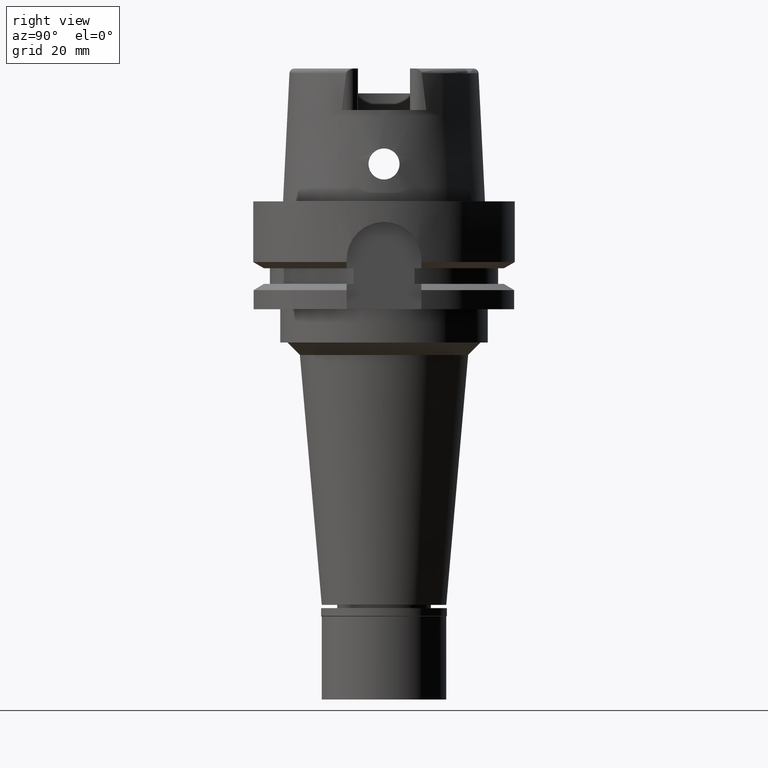
[diagram: clean part render]
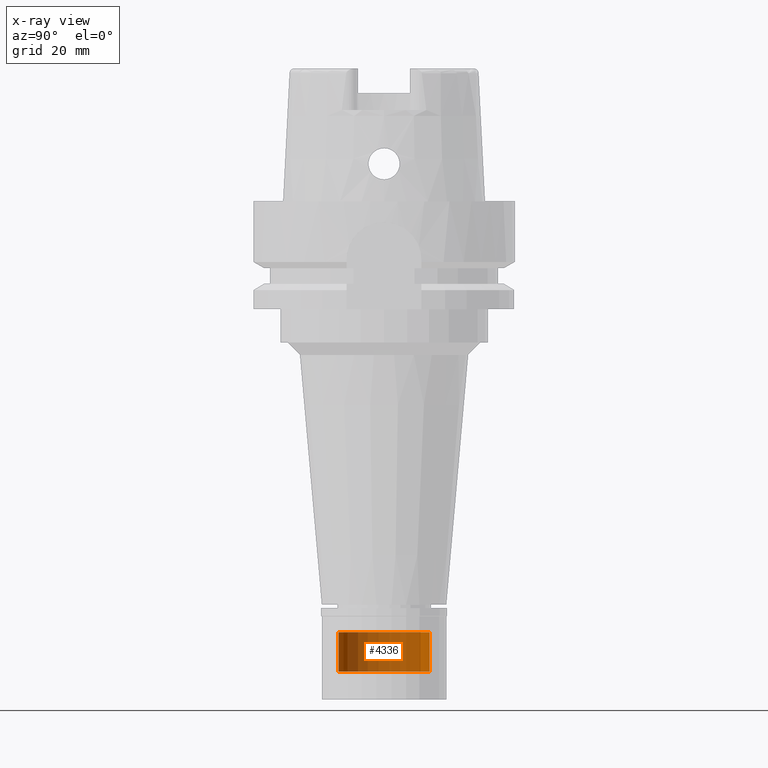
[diagram: x-ray — body ghosted, one internal face saturated and labeled with its STEP entity id]
A machine part, right view, then the same camera in x-ray: the body is ghosted and one INTERNAL B-rep face — a face not visible from any outside direction — is saturated and labeled: STEP entity #4336.
In plain terms, the highlighted cylindrical surface (partial cylindrical patch) has radius 11 mm, axis along (0, 0, 1).
Its self-contained STEP definition (entity closure, byte-faithful):
#157 = VERTEX_POINT ( 'NONE', #1936 ) ;
#397 = VERTEX_POINT ( 'NONE', #3715 ) ;
#499 = EDGE_CURVE ( 'NONE', #157, #2071, #3080, .T. ) ;
#667 = DIRECTION ( 'NONE',  ( 0.0000000000000000000, 0.0000000000000000000, 1.000000000000000000 ) ) ;
#902 = DIRECTION ( 'NONE',  ( 0.0000000000000000000, 0.0000000000000000000, 1.000000000000000000 ) ) ;
#938 = CARTESIAN_POINT ( 'NONE',  ( 0.0000000000000000000, 11.00000000000000000, -103.7999999999999972 ) ) ;
#1233 = DIRECTION ( 'NONE',  ( 0.0000000000000000000, 0.0000000000000000000, -1.000000000000000000 ) ) ;
#1303 = AXIS2_PLACEMENT_3D ( 'NONE', #1869, #667, #2358 ) ;
#1417 = DIRECTION ( 'NONE',  ( 0.0000000000000000000, 0.0000000000000000000, -1.000000000000000000 ) ) ;
#1435 = EDGE_CURVE ( 'NONE', #2071, #3195, #4395, .T. ) ;
#1587 = AXIS2_PLACEMENT_3D ( 'NONE', #4250, #902, #2578 ) ;
#1596 = AXIS2_PLACEMENT_3D ( 'NONE', #2447, #1233, #3343 ) ;
#1869 = CARTESIAN_POINT ( 'NONE',  ( 0.0000000000000000000, 0.0000000000000000000, -113.2999999999999972 ) ) ;
#1936 = CARTESIAN_POINT ( 'NONE',  ( 0.0000000000000000000, -11.00000000000000000, -103.7999999999999972 ) ) ;
#2071 = VERTEX_POINT ( 'NONE', #5396 ) ;
#2194 = ORIENTED_EDGE ( 'NONE', *, *, #2889, .T. ) ;
#2294 = CARTESIAN_POINT ( 'NONE',  ( 0.0000000000000000000, 11.00000000000000000, -113.2999999999999972 ) ) ;
#2358 = DIRECTION ( 'NONE',  ( 0.0000000000000000000, 1.000000000000000000, 0.0000000000000000000 ) ) ;
#2447 = CARTESIAN_POINT ( 'NONE',  ( 0.0000000000000000000, 0.0000000000000000000, -103.7999999999999972 ) ) ;
#2578 = DIRECTION ( 'NONE',  ( 0.0000000000000000000, 1.000000000000000000, 0.0000000000000000000 ) ) ;
#2647 = VECTOR ( 'NONE', #5181, 1000.000000000000000 ) ;
#2704 = CARTESIAN_POINT ( 'NONE',  ( 0.0000000000000000000, -11.00000000000000000, -103.7999999999999972 ) ) ;
#2800 = CIRCLE ( 'NONE', #1303, 11.00000000000000000 ) ;
#2852 = EDGE_CURVE ( 'NONE', #157, #397, #5299, .T. ) ;
#2868 = ORIENTED_EDGE ( 'NONE', *, *, #499, .T. ) ;
#2889 = EDGE_CURVE ( 'NONE', #3195, #397, #2800, .T. ) ;
#2893 = VECTOR ( 'NONE', #1417, 1000.000000000000000 ) ;
#3041 = CYLINDRICAL_SURFACE ( 'NONE', #1587, 11.00000000000000000 ) ;
#3080 = CIRCLE ( 'NONE', #1596, 11.00000000000000000 ) ;
#3195 = VERTEX_POINT ( 'NONE', #2294 ) ;
#3343 = DIRECTION ( 'NONE',  ( 0.0000000000000000000, -1.000000000000000000, 0.0000000000000000000 ) ) ;
#3715 = CARTESIAN_POINT ( 'NONE',  ( 0.0000000000000000000, -11.00000000000000000, -113.2999999999999972 ) ) ;
#3902 = ORIENTED_EDGE ( 'NONE', *, *, #1435, .T. ) ;
#4250 = CARTESIAN_POINT ( 'NONE',  ( 0.0000000000000000000, 0.0000000000000000000, 0.0000000000000000000 ) ) ;
#4336 = ADVANCED_FACE ( 'NONE', ( #4721 ), #3041, .T. ) ;
#4395 = LINE ( 'NONE', #938, #2647 ) ;
#4721 = FACE_OUTER_BOUND ( 'NONE', #5041, .T. ) ;
#5041 = EDGE_LOOP ( 'NONE', ( #2194, #5226, #2868, #3902 ) ) ;
#5181 = DIRECTION ( 'NONE',  ( 0.0000000000000000000, 0.0000000000000000000, -1.000000000000000000 ) ) ;
#5226 = ORIENTED_EDGE ( 'NONE', *, *, #2852, .F. ) ;
#5299 = LINE ( 'NONE', #2704, #2893 ) ;
#5396 = CARTESIAN_POINT ( 'NONE',  ( 0.0000000000000000000, 11.00000000000000000, -103.7999999999999972 ) ) ;